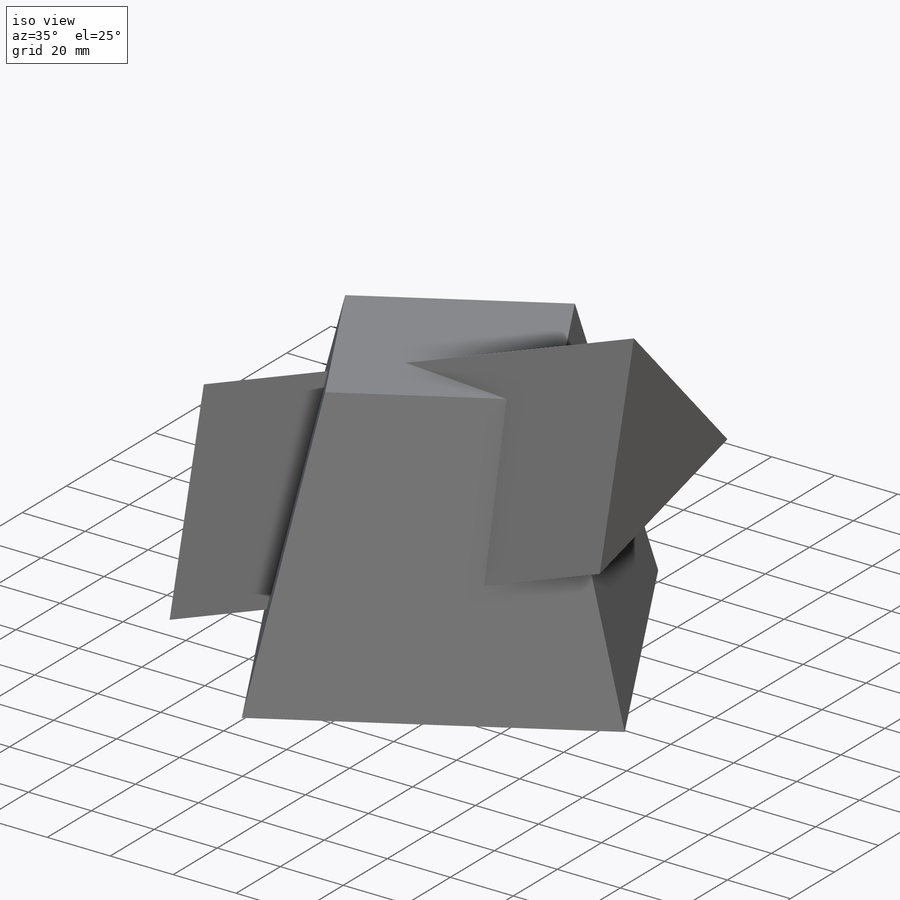
[diagram: iso view]
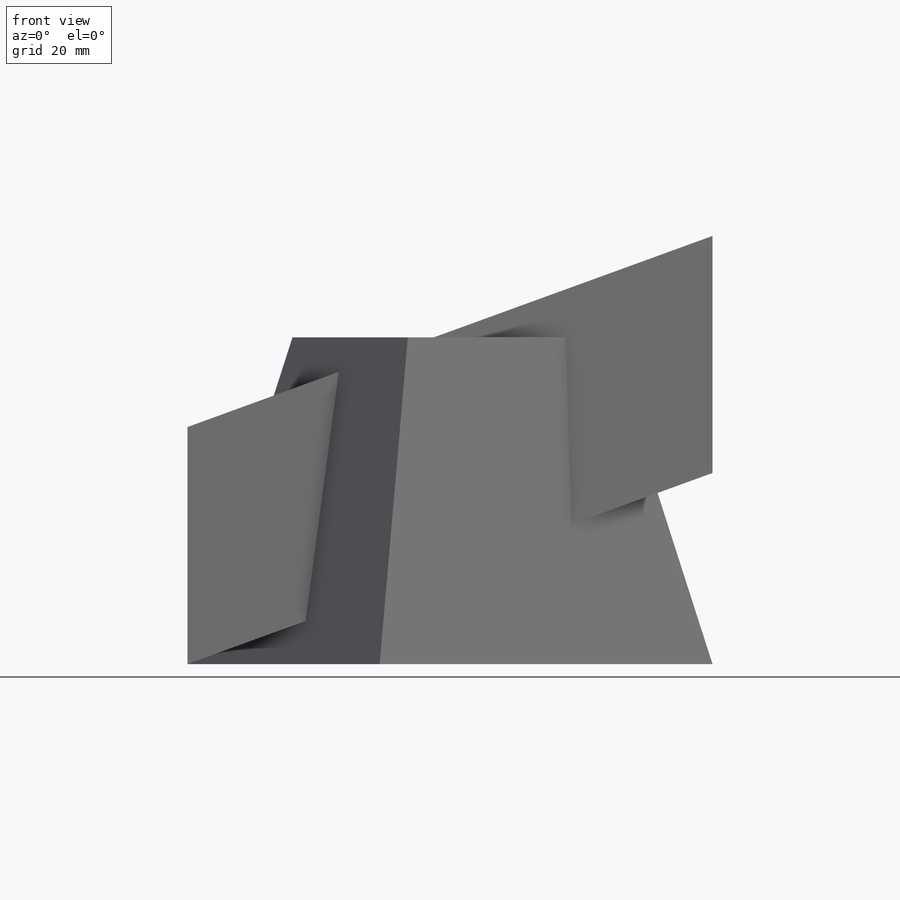
[diagram: front view]
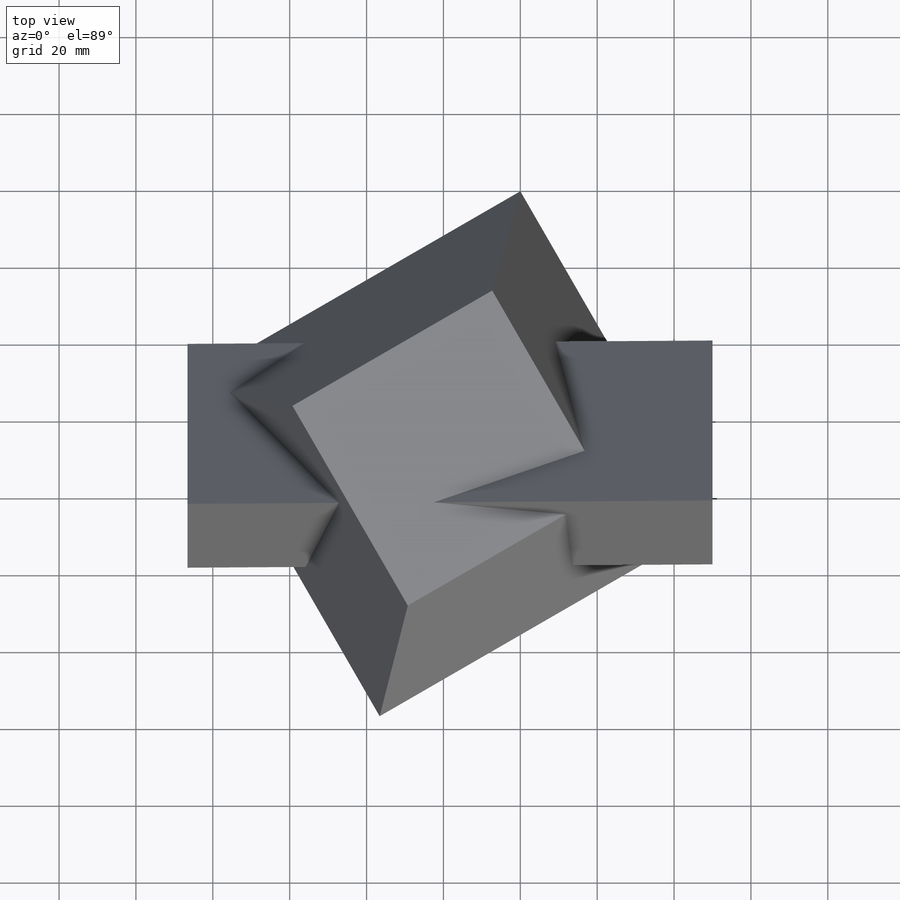
[diagram: top view]
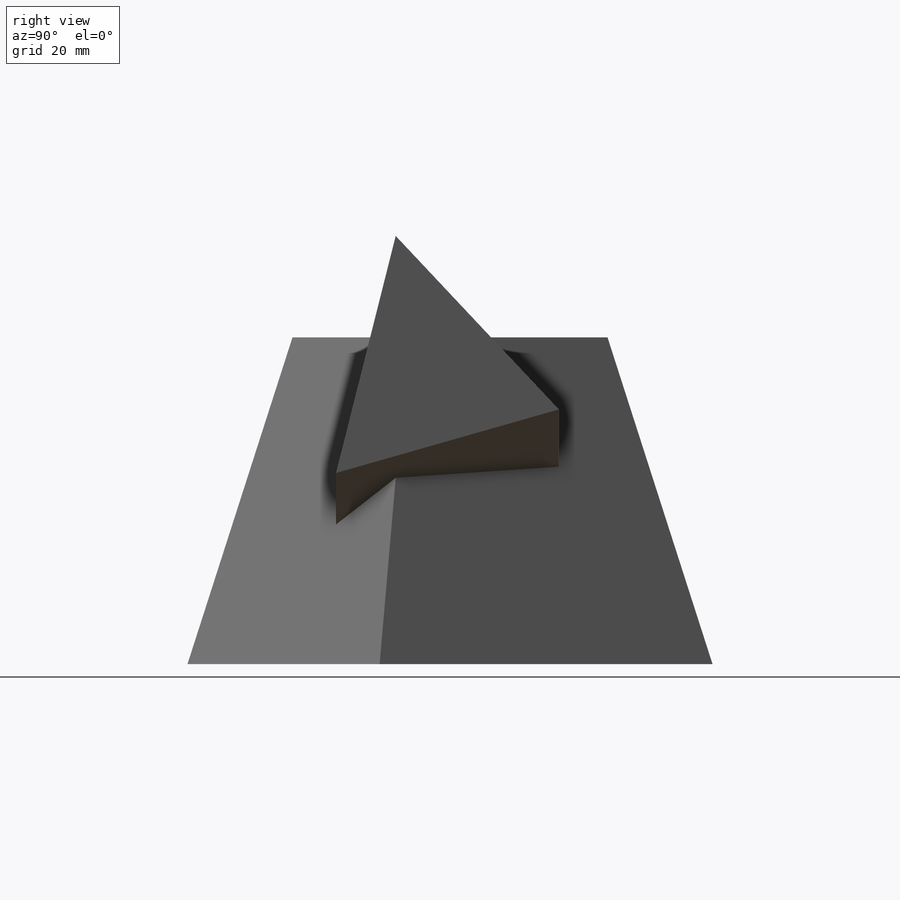
[diagram: right view]
SOLIDWORKS PART (.sldprt)
format: sldprt  version: not decoded by parser v0  size: 282,624 bytes
history: native  units: mm
features: sketch x5, plane x2, material x1, extrude x1, cut_extrude x1 (+14 scaffold rows collapsed)
feature tree (24):
  scaffold x14  (default folders/planes/origin — collapsed)
  material  "Material <not specified>"
  sketch  "Sketch1"  dims[c1.D1=100.0mm c1.D2=~88.66304mm c2.D2=30.0deg]
  plane  "Plane1"  Offset=85mm
  sketch  "Sketch2"  dims[D1=20.0mm]
  sketch  "Sketch3"
  plane  "Plane2"
  sketch  "Sketch4"  dims[c1.D1=40.0mm c1.D2=60.0mm c1.D3=~52.52875mm c2.D3=15.0deg]
  extrude  "Triangular Prism"  Depth=170mm
  sketch  "Sketch5"
  cut_extrude  "Cut-Extrude1"  Depth=100mm
decode coverage: 5 of 7 modeling features carry decoded parameters
note: ~ marks probable driven/reference dimensions
note: suppression state not decoded; provenance and decode notes live in map.json
